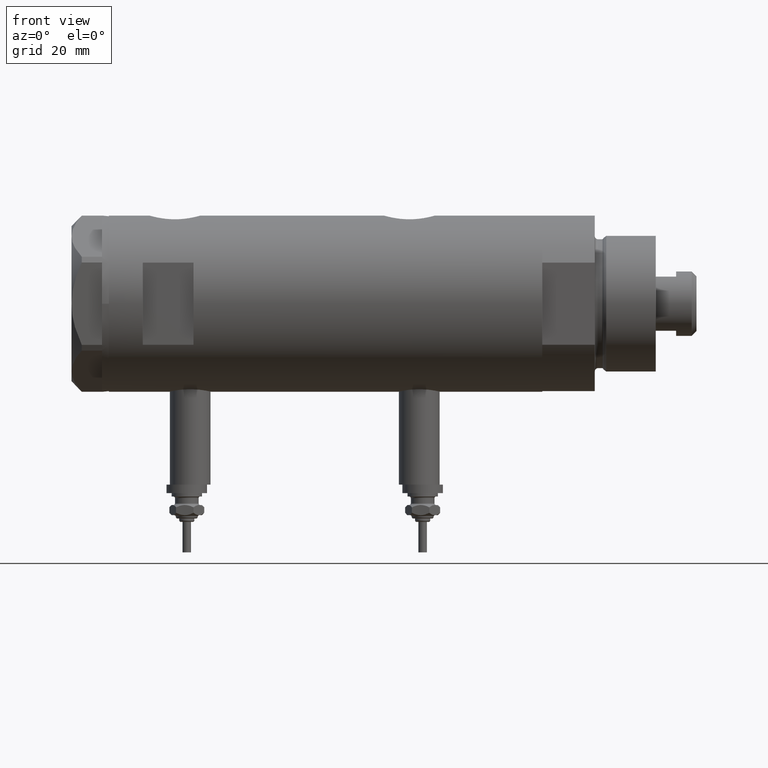
[diagram: clean part render]
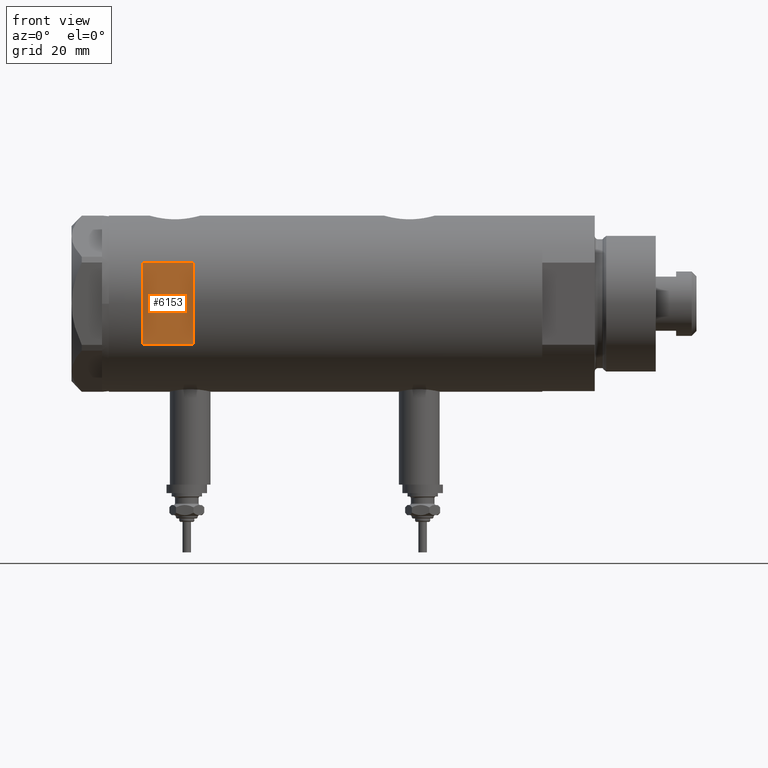
[diagram: same view with one face highlighted and labeled with its STEP entity id]
A machine part, front view. The second image highlights one B-rep face of the part: STEP entity #6153.
In plain terms, the highlighted planar face has unit normal (-0, 1, 0).
Its self-contained STEP definition (entity closure, byte-faithful):
#232 = VERTEX_POINT ( 'NONE', #1768 ) ;
#234 = EDGE_LOOP ( 'NONE', ( #2302, #4792, #3885, #976 ) ) ;
#433 = LINE ( 'NONE', #2803, #645 ) ;
#434 = LINE ( 'NONE', #1358, #2743 ) ;
#645 = VECTOR ( 'NONE', #2262, 1000.000000000000000 ) ;
#771 = PLANE ( 'NONE',  #5523 ) ;
#793 = VECTOR ( 'NONE', #1387, 1000.000000000000000 ) ;
#846 = DIRECTION ( 'NONE',  ( -0.000000000000000000, -0.000000000000000000, -1.000000000000000000 ) ) ;
#976 = ORIENTED_EDGE ( 'NONE', *, *, #3205, .F. ) ;
#1358 = CARTESIAN_POINT ( 'NONE',  ( -12.12435565298214080, -23.00000000000000355, -63.95000000000000995 ) ) ;
#1387 = DIRECTION ( 'NONE',  ( 0.000000000000000000, 0.000000000000000000, 1.000000000000000000 ) ) ;
#1560 = EDGE_CURVE ( 'NONE', #4542, #1675, #3887, .T. ) ;
#1675 = VERTEX_POINT ( 'NONE', #4677 ) ;
#1761 = FACE_OUTER_BOUND ( 'NONE', #234, .T. ) ;
#1768 = CARTESIAN_POINT ( 'NONE',  ( -12.12435565298214080, -23.00000000000000355, 38.94999999999999574 ) ) ;
#2222 = CARTESIAN_POINT ( 'NONE',  ( 12.12435565298214080, -23.00000000000000355, 38.94999999999999574 ) ) ;
#2262 = DIRECTION ( 'NONE',  ( 1.000000000000000000, -0.000000000000000000, -0.000000000000000000 ) ) ;
#2302 = ORIENTED_EDGE ( 'NONE', *, *, #4226, .T. ) ;
#2743 = VECTOR ( 'NONE', #846, 1000.000000000000000 ) ;
#2803 = CARTESIAN_POINT ( 'NONE',  ( -26.00000000000000355, -23.00000000000000355, 53.94999999999999574 ) ) ;
#3167 = DIRECTION ( 'NONE',  ( 0.000000000000000000, -0.000000000000000000, 1.000000000000000000 ) ) ;
#3205 = EDGE_CURVE ( 'NONE', #5513, #1675, #433, .T. ) ;
#3885 = ORIENTED_EDGE ( 'NONE', *, *, #1560, .T. ) ;
#3887 = LINE ( 'NONE', #5293, #793 ) ;
#4226 = EDGE_CURVE ( 'NONE', #5513, #232, #434, .T. ) ;
#4261 = CARTESIAN_POINT ( 'NONE',  ( -26.00000000000000355, -23.00000000000000355, 53.94999999999999574 ) ) ;
#4451 = DIRECTION ( 'NONE',  ( 1.000000000000000000, -0.000000000000000000, -0.000000000000000000 ) ) ;
#4542 = VERTEX_POINT ( 'NONE', #2222 ) ;
#4677 = CARTESIAN_POINT ( 'NONE',  ( 12.12435565298214080, -23.00000000000000355, 53.94999999999999574 ) ) ;
#4757 = VECTOR ( 'NONE', #4451, 1000.000000000000000 ) ;
#4792 = ORIENTED_EDGE ( 'NONE', *, *, #5424, .T. ) ;
#4838 = CARTESIAN_POINT ( 'NONE',  ( -12.12435565298214080, -23.00000000000000355, 53.94999999999999574 ) ) ;
#5293 = CARTESIAN_POINT ( 'NONE',  ( 12.12435565298214080, -23.00000000000000355, -63.95000000000000995 ) ) ;
#5318 = CARTESIAN_POINT ( 'NONE',  ( -26.00000000000000355, -23.00000000000000355, 38.94999999999999574 ) ) ;
#5424 = EDGE_CURVE ( 'NONE', #232, #4542, #5805, .T. ) ;
#5513 = VERTEX_POINT ( 'NONE', #4838 ) ;
#5523 = AXIS2_PLACEMENT_3D ( 'NONE', #4261, #6210, #3167 ) ;
#5805 = LINE ( 'NONE', #5318, #4757 ) ;
#6153 = ADVANCED_FACE ( 'NONE', ( #1761 ), #771, .F. ) ;
#6210 = DIRECTION ( 'NONE',  ( 0.000000000000000000, 1.000000000000000000, 0.000000000000000000 ) ) ;